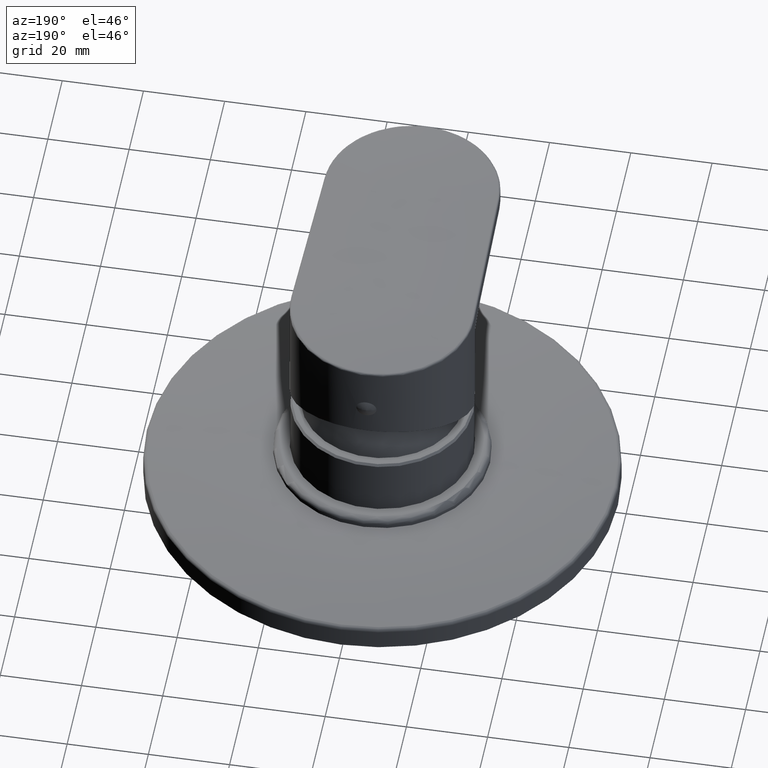
[diagram: clean part render]
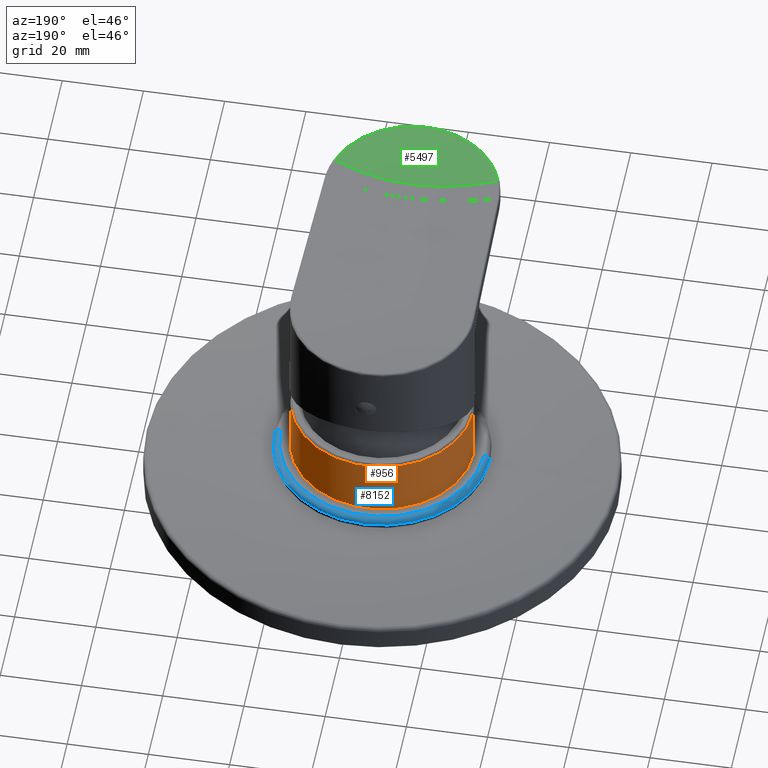
[diagram: same view with three faces highlighted in distinct colors, each labeled with its STEP entity id]
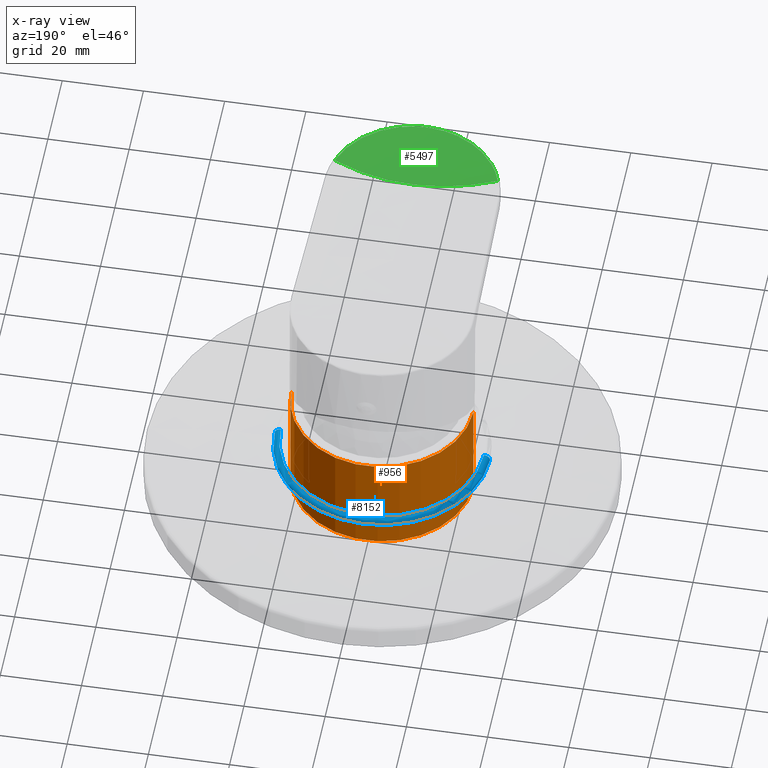
[diagram: x-ray of the same camera — body ghosted, the three highlighted faces saturated]
A machine part, auxiliary view with three faces highlighted in distinct colors.
The next image is the same camera in x-ray (body ghosted, the three faces saturated) — at least one of them is partly hidden behind the body in this view.
Their STEP definitions:

[orange] entity #956 — the highlighted cylindrical surface (partial cylindrical patch) has radius 22.4 mm, axis along (0, 0, 1).
#183=CARTESIAN_POINT('',(0.E0,0.E0,4.004267901771E1));
#184=DIRECTION('',(0.E0,0.E0,1.E0));
#185=DIRECTION('',(1.E0,0.E0,0.E0));
#186=AXIS2_PLACEMENT_3D('',#183,#184,#185);
#188=DIRECTION('',(1.141981375570E-11,6.410305541400E-11,-1.E0));
#189=VECTOR('',#188,2.595732098258E1);
#190=CARTESIAN_POINT('',(2.239999999970E1,-1.663943585335E-9,6.600000000030E1));
#191=LINE('',#190,#189);
#192=CARTESIAN_POINT('',(0.E0,0.E0,6.6E1));
#193=DIRECTION('',(0.E0,0.E0,-1.E0));
#194=DIRECTION('',(-1.E0,0.E0,0.E0));
#195=AXIS2_PLACEMENT_3D('',#192,#193,#194);
#197=DIRECTION('',(-1.141926628570E-11,-6.410313753007E-11,-1.E0));
#198=VECTOR('',#197,2.595732098258E1);
#199=CARTESIAN_POINT('',(-2.239999999970E1,1.663945716869E-9,6.600000000030E1));
#200=LINE('',#199,#198);
#417=CARTESIAN_POINT('',(-2.24E1,0.E0,6.6E1));
#418=CARTESIAN_POINT('',(2.24E1,0.E0,6.6E1));
#419=VERTEX_POINT('',#417);
#420=VERTEX_POINT('',#418);
#489=CARTESIAN_POINT('',(-2.24E1,0.E0,4.004267901771E1));
#490=CARTESIAN_POINT('',(2.24E1,0.E0,4.004267901771E1));
#491=VERTEX_POINT('',#489);
#492=VERTEX_POINT('',#490);
#944=CARTESIAN_POINT('',(0.E0,0.E0,2.3275E1));
#945=DIRECTION('',(0.E0,0.E0,1.E0));
#946=DIRECTION('',(-1.E0,0.E0,0.E0));
#947=AXIS2_PLACEMENT_3D('',#944,#945,#946);
#948=CYLINDRICAL_SURFACE('',#947,2.24E1);
#949=ORIENTED_EDGE('',*,*,#834,.F.);
#950=ORIENTED_EDGE('',*,*,#932,.F.);
#952=ORIENTED_EDGE('',*,*,#951,.F.);
#953=ORIENTED_EDGE('',*,*,#928,.T.);
#954=EDGE_LOOP('',(#949,#950,#952,#953));
#955=FACE_OUTER_BOUND('',#954,.F.);
#956=ADVANCED_FACE('',(#955),#948,.T.);
#187=CIRCLE('',#186,2.24E1);
#196=CIRCLE('',#195,2.24E1);
#834=EDGE_CURVE('',#492,#491,#187,.T.);
#928=EDGE_CURVE('',#419,#491,#200,.T.);
#932=EDGE_CURVE('',#420,#492,#191,.T.);
#951=EDGE_CURVE('',#419,#420,#196,.T.);

[blue] entity #8152 — the highlighted toroidal blend (fillet) surface has major radius 25 mm and minor (blend) radius 1.5 mm.
#7835=CARTESIAN_POINT('',(0.E0,0.E0,5.E1));
#7836=DIRECTION('',(0.E0,0.E0,1.E0));
#7837=DIRECTION('',(1.E0,0.E0,0.E0));
#7838=AXIS2_PLACEMENT_3D('',#7835,#7836,#7837);
#7845=CARTESIAN_POINT('',(2.5E1,0.E0,5.E1));
#7846=DIRECTION('',(0.E0,1.E0,0.E0));
#7847=DIRECTION('',(0.E0,0.E0,1.E0));
#7848=AXIS2_PLACEMENT_3D('',#7845,#7846,#7847);
#7855=CARTESIAN_POINT('',(0.E0,0.E0,5.15E1));
#7856=DIRECTION('',(0.E0,0.E0,1.E0));
#7857=DIRECTION('',(1.E0,0.E0,0.E0));
#7858=AXIS2_PLACEMENT_3D('',#7855,#7856,#7857);
#7860=CARTESIAN_POINT('',(-2.5E1,0.E0,5.E1));
#7861=DIRECTION('',(0.E0,-1.E0,0.E0));
#7862=DIRECTION('',(0.E0,0.E0,1.E0));
#7863=AXIS2_PLACEMENT_3D('',#7860,#7861,#7862);
#7911=CARTESIAN_POINT('',(-2.499999998654E1,0.E0,5.15E1));
#7912=CARTESIAN_POINT('',(2.499999998654E1,0.E0,5.15E1));
#7913=VERTEX_POINT('',#7911);
#7914=VERTEX_POINT('',#7912);
#7915=CARTESIAN_POINT('',(-2.65E1,0.E0,5.E1));
#7916=CARTESIAN_POINT('',(2.65E1,0.E0,5.E1));
#7917=VERTEX_POINT('',#7915);
#7918=VERTEX_POINT('',#7916);
#8138=CARTESIAN_POINT('',(0.E0,0.E0,5.E1));
#8139=DIRECTION('',(0.E0,0.E0,-1.E0));
#8140=DIRECTION('',(9.999806927402E-1,-6.214028224227E-3,0.E0));
#8141=AXIS2_PLACEMENT_3D('',#8138,#8139,#8140);
#8142=TOROIDAL_SURFACE('',#8141,2.5E1,1.5E0);
#8144=ORIENTED_EDGE('',*,*,#8143,.T.);
#8146=ORIENTED_EDGE('',*,*,#8145,.T.);
#8147=ORIENTED_EDGE('',*,*,#8121,.F.);
#8149=ORIENTED_EDGE('',*,*,#8148,.F.);
#8150=EDGE_LOOP('',(#8144,#8146,#8147,#8149));
#8151=FACE_OUTER_BOUND('',#8150,.F.);
#8152=ADVANCED_FACE('',(#8151),#8142,.T.);
#7839=CIRCLE('',#7838,2.65E1);
#7849=CIRCLE('',#7848,1.5E0);
#7859=CIRCLE('',#7858,2.499999998654E1);
#7864=CIRCLE('',#7863,1.5E0);
#8121=EDGE_CURVE('',#7918,#7917,#7839,.T.);
#8143=EDGE_CURVE('',#7914,#7913,#7859,.T.);
#8145=EDGE_CURVE('',#7913,#7917,#7864,.T.);
#8148=EDGE_CURVE('',#7914,#7918,#7849,.T.);

[green] entity #5497 — the highlighted face is a freeform B-spline surface patch.
#2058=CARTESIAN_POINT('',(2.009629814362E1,-4.723864223612E1,9.813925318428E1));
#2083=CARTESIAN_POINT('',(2.009629814362E1,-4.723864223612E1,9.813925318428E1));
#2084=CARTESIAN_POINT('',(1.998888650840E1,-4.758447688948E1,9.813922051445E1));
#2085=CARTESIAN_POINT('',(1.975599681848E1,-4.827123626643E1,9.813914388542E1));
#2086=CARTESIAN_POINT('',(1.935294021588E1,-4.928452131131E1,9.813900920589E1));
#2087=CARTESIAN_POINT('',(1.889746413649E1,-5.027637947718E1,9.813889551403E1));
#2088=CARTESIAN_POINT('',(1.839081001130E1,-5.124400113862E1,9.813880670104E1));
#2089=CARTESIAN_POINT('',(1.783458388256E1,-5.218410267443E1,9.813874230745E1));
#2090=CARTESIAN_POINT('',(1.723039899190E1,-5.309409726724E1,9.813868432269E1));
#2091=CARTESIAN_POINT('',(1.657964958043E1,-5.397174344869E1,9.813860536944E1));
#2092=CARTESIAN_POINT('',(1.588413435971E1,-5.481461174320E1,9.813852828951E1));
#2093=CARTESIAN_POINT('',(1.514580434461E1,-5.562028425281E1,9.813848240988E1));
#2094=CARTESIAN_POINT('',(1.436666304958E1,-5.638658559053E1,9.813847891204E1));
#2095=CARTESIAN_POINT('',(1.354875517228E1,-5.711150635416E1,9.813851731829E1));
#2096=CARTESIAN_POINT('',(1.269421651745E1,-5.779310547751E1,9.813858734897E1));
#2097=CARTESIAN_POINT('',(1.180559585089E1,-5.842943594238E1,9.813865677567E1));
#2098=CARTESIAN_POINT('',(1.088430416266E1,-5.901918842530E1,9.813874070523E1));
#2099=CARTESIAN_POINT('',(9.936651168912E0,-5.955907319496E1,9.813887094935E1));
#2100=CARTESIAN_POINT('',(8.950317224229E0,-6.005427967574E1,9.813906500709E1));
#2101=CARTESIAN_POINT('',(8.003715948531E0,-6.046901002783E1,9.813930777061E1));
#2102=CARTESIAN_POINT('',(7.170363385250E0,-6.078939734098E1,9.813955727641E1));
#2103=CARTESIAN_POINT('',(6.425182212360E0,-6.104281895021E1,9.813979837302E1));
#2104=CARTESIAN_POINT('',(5.758739878963E0,-6.124367965444E1,9.814001977526E1));
#2105=CARTESIAN_POINT('',(5.160391256230E0,-6.140397830119E1,9.814023130690E1));
#2106=CARTESIAN_POINT('',(4.621905121080E0,-6.153236948719E1,9.814043674307E1));
#2107=CARTESIAN_POINT('',(4.136026375317E0,-6.163556089067E1,9.814063702992E1));
#2108=CARTESIAN_POINT('',(3.696629004143E0,-6.171868986438E1,9.814083183351E1));
#2109=CARTESIAN_POINT('',(3.298435765940E0,-6.178576323372E1,9.814102036522E1));
#2110=CARTESIAN_POINT('',(2.936841195559E0,-6.183993046355E1,9.814120181110E1));
#2111=CARTESIAN_POINT('',(2.608281136272E0,-6.188362416826E1,9.814137525060E1));
#2112=CARTESIAN_POINT('',(2.310092396598E0,-6.191875258678E1,9.814153968667E1));
#2113=CARTESIAN_POINT('',(2.039759167174E0,-6.194689644917E1,9.814169441869E1));
#2114=CARTESIAN_POINT('',(1.794906939043E0,-6.196936024425E1,9.814183903519E1));
#2115=CARTESIAN_POINT('',(1.573330308224E0,-6.198721602883E1,9.814197335807E1));
#2116=CARTESIAN_POINT('',(1.372990803223E0,-6.200134278726E1,9.814209739493E1));
#2117=CARTESIAN_POINT('',(1.191989218537E0,-6.201246117569E1,9.814221130489E1));
#2118=CARTESIAN_POINT('',(1.028579537711E0,-6.202115847893E1,9.814231534095E1));
#2119=CARTESIAN_POINT('',(8.815730884721E-1,-6.202789498618E1,
9.814240954071E1));
#2120=CARTESIAN_POINT('',(7.501320870431E-1,-6.203304514318E1,
9.814249381457E1));
#2121=CARTESIAN_POINT('',(6.333635962969E-1,-6.203692804405E1,
9.814256818778E1));
#2122=CARTESIAN_POINT('',(5.303557423177E-1,-6.203981128426E1,
9.814263276961E1));
#2123=CARTESIAN_POINT('',(4.399945899782E-1,-6.204192061982E1,
9.814268786705E1));
#2124=CARTESIAN_POINT('',(3.612774681210E-1,-6.204343643232E1,
9.814273379436E1));
#2125=CARTESIAN_POINT('',(2.928010267718E-1,-6.204451202400E1,
9.814277122983E1));
#2126=CARTESIAN_POINT('',(2.308947188635E-1,-6.204529047060E1,
9.814280202767E1));
#2127=CARTESIAN_POINT('',(1.725444485418E-1,-6.204585419380E1,
9.814282718290E1));
#2128=CARTESIAN_POINT('',(1.159666952837E-1,-6.204624333030E1,
9.814284654289E1));
#2129=CARTESIAN_POINT('',(5.989394589306E-2,-6.204647727988E1,
9.814285925274E1));
#2130=CARTESIAN_POINT('',(3.783602377799E-3,-6.204656173264E1,
9.814286408915E1));
#2131=CARTESIAN_POINT('',(-5.233461583898E-2,-6.204649734691E1,
9.814286038885E1));
#2132=CARTESIAN_POINT('',(-1.083952925591E-1,-6.204628371120E1,
9.814284867134E1));
#2133=CARTESIAN_POINT('',(-1.648501114500E-1,-6.204591619746E1,
9.814283014176E1));
#2134=CARTESIAN_POINT('',(-2.228645335307E-1,-6.204537786930E1,
9.814280574432E1));
#2135=CARTESIAN_POINT('',(-2.841714582277E-1,-6.204463162201E1,
9.814277572394E1));
#2136=CARTESIAN_POINT('',(-3.515129517743E-1,-6.204360353394E1,
9.814273930054E1));
#2137=CARTESIAN_POINT('',(-4.286659968630E-1,-6.204215721133E1,
9.814269462041E1));
#2138=CARTESIAN_POINT('',(-5.174847390160E-1,-6.204013607856E1,
9.814264072977E1));
#2139=CARTESIAN_POINT('',(-6.191057597505E-1,-6.203735832185E1,
9.814257720412E1));
#2140=CARTESIAN_POINT('',(-7.346935978220E-1,-6.203359741060E1,
9.814250368993E1));
#2141=CARTESIAN_POINT('',(-8.651808211960E-1,-6.202858445013E1,
9.814242005927E1));
#2142=CARTESIAN_POINT('',(-1.011463331462E0,-6.202199880679E1,
9.814232628615E1));
#2143=CARTESIAN_POINT('',(-1.174382520303E0,-6.201346315600E1,
9.814222246301E1));
#2144=CARTESIAN_POINT('',(-1.355002492455E0,-6.200252208866E1,
9.814210863731E1));
#2145=CARTESIAN_POINT('',(-1.555067632022E0,-6.198858853876E1,
9.814198456053E1));
#2146=CARTESIAN_POINT('',(-1.776488972849E0,-6.197094035096E1,
9.814185006980E1));
#2147=CARTESIAN_POINT('',(-2.021315731734E0,-6.194869629274E1,
9.814170515534E1));
#2148=CARTESIAN_POINT('',(-2.291772492497E0,-6.192077997226E1,
9.814154999057E1));
#2149=CARTESIAN_POINT('',(-2.590246375581E0,-6.188588160731E1,
9.814138499011E1));
#2150=CARTESIAN_POINT('',(-2.919283960542E0,-6.184241065630E1,
9.814121085290E1));
#2151=CARTESIAN_POINT('',(-3.281522143554E0,-6.178845390776E1,
9.814102861111E1));
#2152=CARTESIAN_POINT('',(-3.680442889046E0,-6.172158529531E1,
9.814083924667E1));
#2153=CARTESIAN_POINT('',(-4.120715478101E0,-6.163863889064E1,
9.814064356728E1));
#2154=CARTESIAN_POINT('',(-4.607639675328E0,-6.153559141525E1,
9.814044238431E1));
#2155=CARTESIAN_POINT('',(-5.147362318831E0,-6.140728914657E1,
9.814023606784E1));
#2156=CARTESIAN_POINT('',(-5.747243666131E0,-6.124696442056E1,
9.814002367415E1));
#2157=CARTESIAN_POINT('',(-6.415310838043E0,-6.104601974900E1,
9.813980159958E1));
#2158=CARTESIAN_POINT('',(-7.163211786637E0,-6.079199990538E1,
9.813955953197E1));
#2159=CARTESIAN_POINT('',(-7.997888123135E0,-6.047150112336E1,
9.813930930839E1));
#2160=CARTESIAN_POINT('',(-8.951295071570E0,-6.005387813754E1,
9.813906473147E1));
#2161=CARTESIAN_POINT('',(-9.935791878587E0,-5.955949473499E1,
9.813887114011E1));
#2162=CARTESIAN_POINT('',(-1.088411188253E1,-5.901932296149E1,
9.813874071869E1));
#2163=CARTESIAN_POINT('',(-1.180515033164E1,-5.842972859235E1,
9.813865683192E1));
#2164=CARTESIAN_POINT('',(-1.269387211181E1,-5.779336985903E1,
9.813858739919E1));
#2165=CARTESIAN_POINT('',(-1.354843450727E1,-5.711177519996E1,
9.813851735311E1));
#2166=CARTESIAN_POINT('',(-1.436637913965E1,-5.638685192222E1,
9.813847890980E1));
#2167=CARTESIAN_POINT('',(-1.514555244969E1,-5.562054668979E1,
9.813848232184E1));
#2168=CARTESIAN_POINT('',(-1.588389600240E1,-5.481488464760E1,
9.813852834920E1));
#2169=CARTESIAN_POINT('',(-1.657944775931E1,-5.397200330649E1,
9.813860531262E1));
#2170=CARTESIAN_POINT('',(-1.723023083333E1,-5.309433809904E1,
9.813868424689E1));
#2171=CARTESIAN_POINT('',(-1.783440495024E1,-5.218438570665E1,
9.813874228008E1));
#2172=CARTESIAN_POINT('',(-1.839060569120E1,-5.124436492835E1,
9.813880669025E1));
#2173=CARTESIAN_POINT('',(-1.889726248327E1,-5.027678837871E1,
9.813889552926E1));
#2174=CARTESIAN_POINT('',(-1.935277580274E1,-4.928491178570E1,
9.813900904999E1));
#2175=CARTESIAN_POINT('',(-1.975590062520E1,-4.827151497645E1,
9.813914361649E1));
#2176=CARTESIAN_POINT('',(-1.998885367856E1,-4.758458452121E1,
9.813922048140E1));
#2177=CARTESIAN_POINT('',(-2.009629814427E1,-4.723864223632E1,
9.813925319229E1));
#2179=CARTESIAN_POINT('',(2.009629814362E1,-4.723864223612E1,9.813925318428E1));
#2180=CARTESIAN_POINT('',(1.339753209224E1,-4.342914090579E1,9.877975097513E1));
#2181=CARTESIAN_POINT('',(3.253006752857E-10,-3.961963958192E1,
9.942024902087E1));
#2182=CARTESIAN_POINT('',(-1.339753209289E1,-4.342914090599E1,
9.877975098314E1));
#2183=CARTESIAN_POINT('',(-2.009629814427E1,-4.723864223632E1,
9.813925319229E1));
#3581=VERTEX_POINT('',#2058);
#3583=VERTEX_POINT('',#2177);
#5457=CARTESIAN_POINT('',(3.220122499921E-1,-6.249511533666E1,
9.810023318601E1));
#5458=CARTESIAN_POINT('',(2.469706896548E0,-6.244633803991E1,9.810177928E1));
#5459=CARTESIAN_POINT('',(6.862143964297E0,-6.168249938133E1,9.810456772062E1));
#5460=CARTESIAN_POINT('',(1.285998054053E1,-5.856702860199E1,9.810760197228E1));
#5461=CARTESIAN_POINT('',(1.780461290583E1,-5.354178266408E1,9.810950128134E1));
#5462=CARTESIAN_POINT('',(1.988058783906E1,-4.924869260281E1,9.810989559848E1));
#5463=CARTESIAN_POINT('',(2.055442804805E1,-4.690497911532E1,9.810986085807E1));
#5464=CARTESIAN_POINT('',(2.146748333281E-1,-6.233247594719E1,
9.811583677661E1));
#5465=CARTESIAN_POINT('',(1.646471264365E0,-6.120960983337E1,9.822083940926E1));
#5466=CARTESIAN_POINT('',(4.574762642865E0,-5.868405071439E1,9.841021574002E1));
#5467=CARTESIAN_POINT('',(8.573320360352E0,-5.420574098384E1,9.861628627398E1));
#5468=CARTESIAN_POINT('',(1.186974193722E1,-4.894012802203E1,9.874527743062E1));
#5469=CARTESIAN_POINT('',(1.325372522604E1,-4.508355139971E1,9.877205739212E1));
#5470=CARTESIAN_POINT('',(1.370295203203E1,-4.304389866478E1,9.876969800463E1));
#5471=CARTESIAN_POINT('',(-1.498270059051E-5,-6.216982520669E1,
9.813144145622E1));
#5472=CARTESIAN_POINT('',(-1.149114021106E-4,-5.997279531245E1,
9.833990784803E1));
#5473=CARTESIAN_POINT('',(-3.192842785773E-4,-5.568539277812E1,
9.871588509137E1));
#5474=CARTESIAN_POINT('',(-5.983537552172E-4,-4.984414898037E1,
9.912500607805E1));
#5475=CARTESIAN_POINT('',(-8.284193711781E-4,-4.433815221885E1,
9.938109795233E1));
#5476=CARTESIAN_POINT('',(-9.250110723311E-4,-4.091811950084E1,
9.943426539971E1));
#5477=CARTESIAN_POINT('',(-9.563637495997E-4,-3.918254873965E1,
9.942958120290E1));
#5478=CARTESIAN_POINT('',(-2.147047987293E-1,-6.233249865080E1,
9.811583459843E1));
#5479=CARTESIAN_POINT('',(-1.646701087169E0,-6.120978247421E1,
9.822082278908E1));
#5480=CARTESIAN_POINT('',(-4.575401211422E0,-5.868446928226E1,
9.841017307314E1));
#5481=CARTESIAN_POINT('',(-8.574517067862E0,-5.420634979696E1,
9.861621526429E1));
#5482=CARTESIAN_POINT('',(-1.187139877596E1,-4.894077038914E1,
9.874518867957E1));
#5483=CARTESIAN_POINT('',(-1.325557524818E1,-4.508413283181E1,
9.877196495777E1));
#5484=CARTESIAN_POINT('',(-1.370486475953E1,-4.304443765157E1,
9.876960589479E1));
#5485=CARTESIAN_POINT('',(-3.220571980940E-1,-6.249518344751E1,
9.810022665147E1));
#5486=CARTESIAN_POINT('',(-2.470051630754E0,-6.244685596243E1,
9.810172941947E1));
#5487=CARTESIAN_POINT('',(-6.863101817133E0,-6.168375508495E1,
9.810443971998E1));
#5488=CARTESIAN_POINT('',(-1.286177560179E1,-5.856885504135E1,
9.810738894322E1));
#5489=CARTESIAN_POINT('',(-1.780709816394E1,-5.354370976540E1,
9.810923502819E1));
#5490=CARTESIAN_POINT('',(-1.988336287228E1,-4.925043689910E1,
9.810961829543E1));
#5491=CARTESIAN_POINT('',(-2.055729713930E1,-4.690659607570E1,
9.810958452854E1));
#5492=B_SPLINE_SURFACE_WITH_KNOTS('',3,3,((#5457,#5458,#5459,#5460,#5461,#5462,
#5463),(#5464,#5465,#5466,#5467,#5468,#5469,#5470),(#5471,#5472,#5473,#5474,
#5475,#5476,#5477),(#5478,#5479,#5480,#5481,#5482,#5483,#5484),(#5485,#5486,
#5487,#5488,#5489,#5490,#5491)),.UNSPECIFIED.,.F.,.F.,.F.,(4,1,4),(4,1,1,1,4),(
2.472272227267E-3,5.E-1,9.975971752147E-1),(2.938655028676E-3,6.174232860951E-2,
1.234846572190E-1,1.852269858285E-1,2.518015356527E-1),.UNSPECIFIED.);
#5493=ORIENTED_EDGE('',*,*,#4887,.T.);
#5494=ORIENTED_EDGE('',*,*,#5441,.F.);
#5495=EDGE_LOOP('',(#5493,#5494));
#5496=FACE_OUTER_BOUND('',#5495,.F.);
#5497=ADVANCED_FACE('',(#5496),#5492,.F.);
#2178=B_SPLINE_CURVE_WITH_KNOTS('',3,(#2083,#2084,#2085,#2086,#2087,#2088,#2089,
#2090,#2091,#2092,#2093,#2094,#2095,#2096,#2097,#2098,#2099,#2100,#2101,#2102,
#2103,#2104,#2105,#2106,#2107,#2108,#2109,#2110,#2111,#2112,#2113,#2114,#2115,
#2116,#2117,#2118,#2119,#2120,#2121,#2122,#2123,#2124,#2125,#2126,#2127,#2128,
#2129,#2130,#2131,#2132,#2133,#2134,#2135,#2136,#2137,#2138,#2139,#2140,#2141,
#2142,#2143,#2144,#2145,#2146,#2147,#2148,#2149,#2150,#2151,#2152,#2153,#2154,
#2155,#2156,#2157,#2158,#2159,#2160,#2161,#2162,#2163,#2164,#2165,#2166,#2167,
#2168,#2169,#2170,#2171,#2172,#2173,#2174,#2175,#2176,#2177),.UNSPECIFIED.,.F.,
.F.,(4,1,1,1,1,1,1,1,1,1,1,1,1,1,1,1,1,1,1,1,1,1,1,1,1,1,1,1,1,1,1,1,1,1,1,1,1,
1,1,1,1,1,1,1,1,1,1,1,1,1,1,1,1,1,1,1,1,1,1,1,1,1,1,1,1,1,1,1,1,1,1,1,1,1,1,1,1,
1,1,1,1,1,1,1,1,1,1,1,1,1,1,1,4),(0.E0,1.086956521739E-2,2.173913043478E-2,
3.260869565217E-2,4.347826086957E-2,5.434782608696E-2,6.521739130435E-2,
7.608695652174E-2,8.695652173913E-2,9.782608695652E-2,1.086956521739E-1,
1.195652173913E-1,1.304347826087E-1,1.413043478261E-1,1.521739130435E-1,
1.630434782609E-1,1.739130434783E-1,1.847826086957E-1,1.956521739130E-1,
2.065217391304E-1,2.173913043478E-1,2.282608695652E-1,2.391304347826E-1,2.5E-1,
2.608695652174E-1,2.717391304348E-1,2.826086956522E-1,2.934782608696E-1,
3.043478260870E-1,3.152173913043E-1,3.260869565217E-1,3.369565217391E-1,
3.478260869565E-1,3.586956521739E-1,3.695652173913E-1,3.804347826087E-1,
3.913043478261E-1,4.021739130435E-1,4.130434782609E-1,4.239130434783E-1,
4.347826086957E-1,4.456521739130E-1,4.565217391304E-1,4.673913043478E-1,
4.782608695652E-1,4.891304347826E-1,5.E-1,5.108695652174E-1,5.217391304348E-1,
5.326086956522E-1,5.434782608696E-1,5.543478260870E-1,5.652173913043E-1,
5.760869565217E-1,5.869565217391E-1,5.978260869565E-1,6.086956521739E-1,
6.195652173913E-1,6.304347826087E-1,6.413043478261E-1,6.521739130435E-1,
6.630434782609E-1,6.739130434783E-1,6.847826086957E-1,6.956521739130E-1,
7.065217391304E-1,7.173913043478E-1,7.282608695652E-1,7.391304347826E-1,7.5E-1,
7.608695652174E-1,7.717391304348E-1,7.826086956522E-1,7.934782608696E-1,
8.043478260870E-1,8.152173913043E-1,8.260869565217E-1,8.369565217391E-1,
8.478260869565E-1,8.586956521739E-1,8.695652173913E-1,8.804347826087E-1,
8.913043478261E-1,9.021739130435E-1,9.130434782609E-1,9.239130434783E-1,
9.347826086957E-1,9.456521739130E-1,9.565217391304E-1,9.673913043478E-1,
9.782608695652E-1,9.891304347826E-1,1.E0),.UNSPECIFIED.);
#2184=B_SPLINE_CURVE_WITH_KNOTS('',3,(#2179,#2180,#2181,#2182,#2183),
.UNSPECIFIED.,.F.,.F.,(4,1,4),(0.E0,5.E-1,1.E0),.UNSPECIFIED.);
#4887=EDGE_CURVE('',#3581,#3583,#2178,.T.);
#5441=EDGE_CURVE('',#3581,#3583,#2184,.T.);